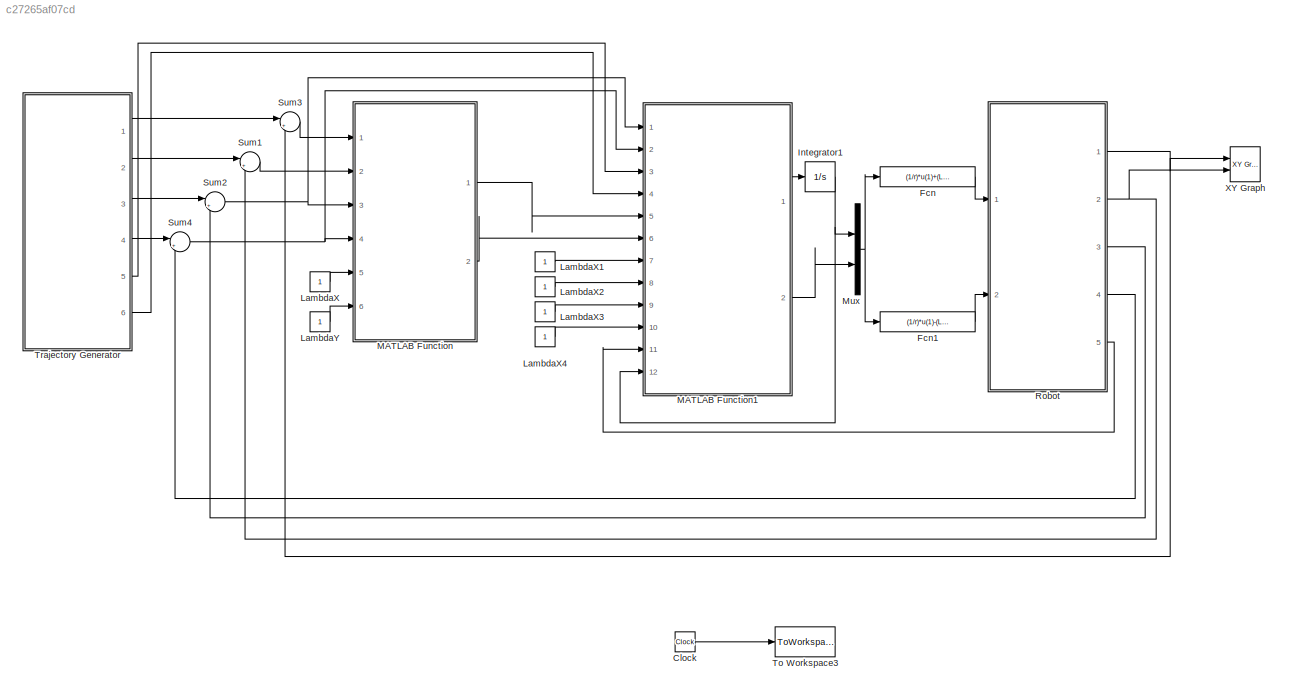
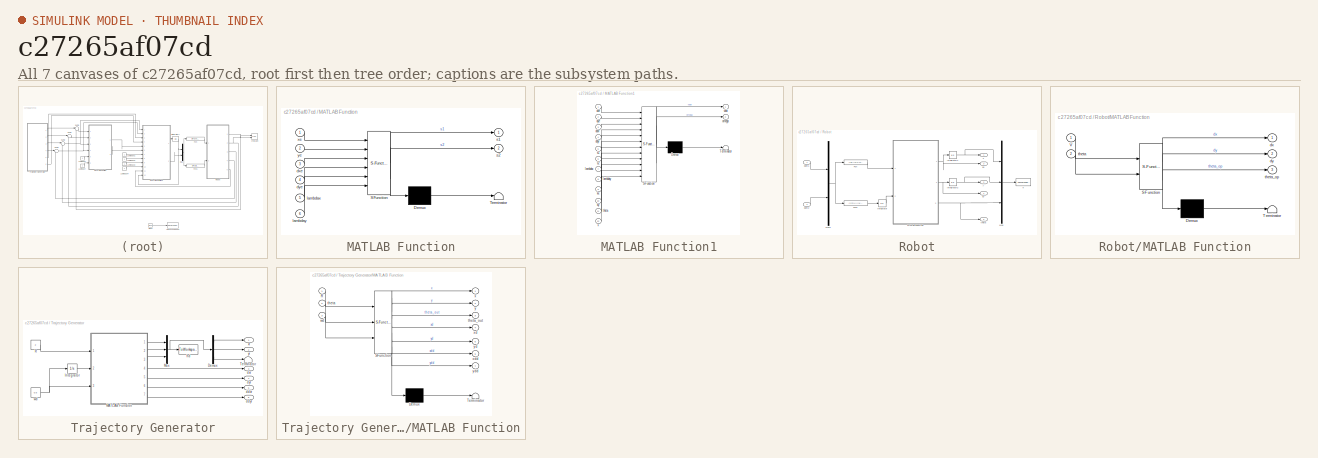
[diagram: thumbnail index - all 7 canvases of the model, root first then tree order]
MODEL slx_c27265af07cd
KIND model
CONFIG AbsTol = auto
CONFIG FixedStep = 0.0001
CONFIG MaxStep = auto
CONFIG MinStep = auto
CONFIG RelTol = 1e-3
CONFIG SampleTimeConstraint = Unconstrained
CONFIG Solver = ode4
CONFIG SolverMode = Auto
CONFIG SolverName = ode4
CONFIG StartTime = 0.0
CONFIG StopTime = 20
BLOCK [Constant]                                LambdaX1
BLOCK [Constant]                                LambdaX2
BLOCK [Constant]                              LambdaX3
BLOCK [Constant]                             LambdaX4
BLOCK [Clock] Clock
BLOCK [Fcn] Fcn
  Expr = (1/r)*u(1)+(L/r)*u(2)
BLOCK [Fcn] Fcn1
  Expr = (1/r)*u(1)-(L/r)*u(2)
BLOCK [Integrator] Integrator1
  InitialCondition = 1
  Ports = [1, 1]
BLOCK [Constant] LambdaX
BLOCK [Constant] LambdaY
BLOCK [SubSystem] MATLAB Function
  ErrorFcn = Stateflow.Translate.translate
  PermitHierarchicalResolution = ExplicitOnly
  Ports = [6, 2]
  RequestExecContextInheritance = off
  SFBlockType = MATLAB Function
  TreatAsAtomicUnit = on
  Variant = off
BLOCK [Demux] MATLAB Function/ Demux 
  Outputs = 1
  Ports = [1, 1]
BLOCK [S-Function] MATLAB Function/ SFunction 
  EnableBusSupport = on
  FunctionName = sf_sfun
  PortCounts = [6 3]
  Ports = [6, 3]
  SFunctionDeploymentMode = off
  Tag = Stateflow S-Function smc 3
BLOCK [Terminator] MATLAB Function/ Terminator 
BLOCK [Inport] MATLAB Function/dxe
  IconDisplay = Port number
  Port = 3
BLOCK [Inport] MATLAB Function/dye
  IconDisplay = Port number
  Port = 4
BLOCK [Inport] MATLAB Function/lambdax
  IconDisplay = Port number
  Port = 5
BLOCK [Inport] MATLAB Function/lambday
  IconDisplay = Port number
  Port = 6
BLOCK [Outport] MATLAB Function/s1
  IconDisplay = Port number
BLOCK [Outport] MATLAB Function/s2
  IconDisplay = Port number
  Port = 2
BLOCK [Inport] MATLAB Function/xe
  IconDisplay = Port number
BLOCK [Inport] MATLAB Function/ye
  IconDisplay = Port number
  Port = 2
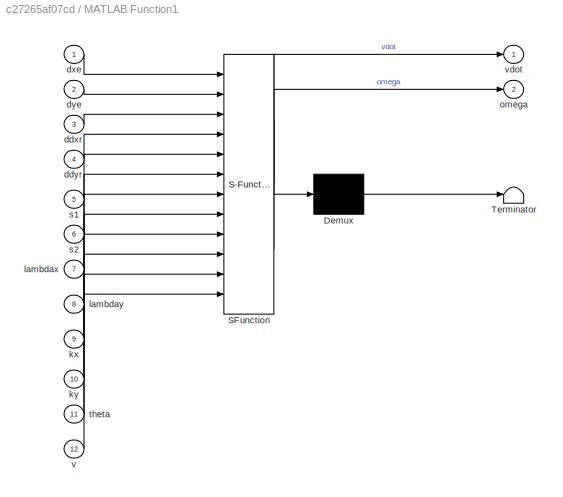
BLOCK [SubSystem] MATLAB Function1
  ErrorFcn = Stateflow.Translate.translate
  PermitHierarchicalResolution = ExplicitOnly
  Ports = [12, 2]
  RequestExecContextInheritance = off
  SFBlockType = MATLAB Function
  TreatAsAtomicUnit = on
  Variant = off
BLOCK [Demux] MATLAB Function1/ Demux 
  Outputs = 1
  Ports = [1, 1]
BLOCK [S-Function] MATLAB Function1/ SFunction 
  EnableBusSupport = on
  FunctionName = sf_sfun
  PortCounts = [12 3]
  Ports = [12, 3]
  SFunctionDeploymentMode = off
  Tag = Stateflow S-Function smc 4
BLOCK [Terminator] MATLAB Function1/ Terminator 
BLOCK [Inport] MATLAB Function1/ddxr
  IconDisplay = Port number
  Port = 3
BLOCK [Inport] MATLAB Function1/ddyr
  IconDisplay = Port number
  Port = 4
BLOCK [Inport] MATLAB Function1/dxe
  IconDisplay = Port number
BLOCK [Inport] MATLAB Function1/dye
  IconDisplay = Port number
  Port = 2
BLOCK [Inport] MATLAB Function1/kx
  IconDisplay = Port number
  Port = 9
BLOCK [Inport] MATLAB Function1/ky
  IconDisplay = Port number
  Port = 10
BLOCK [Inport] MATLAB Function1/lambdax
  IconDisplay = Port number
  Port = 7
BLOCK [Inport] MATLAB Function1/lambday
  IconDisplay = Port number
  Port = 8
BLOCK [Outport] MATLAB Function1/omega
  IconDisplay = Port number
  Port = 2
BLOCK [Inport] MATLAB Function1/s1
  IconDisplay = Port number
  Port = 5
BLOCK [Inport] MATLAB Function1/s2
  IconDisplay = Port number
  Port = 6
BLOCK [Inport] MATLAB Function1/theta
  IconDisplay = Port number
  Port = 11
BLOCK [Inport] MATLAB Function1/v
  IconDisplay = Port number
  Port = 12
BLOCK [Outport] MATLAB Function1/vdot
  IconDisplay = Port number
BLOCK [Mux] Mux
  DisplayOption = bar
  Inputs = 2
  Ports = [2, 1]
BLOCK [SubSystem] Robot
  Ports = [2, 5]
  RequestExecContextInheritance = off
  Variant = off
BLOCK [Fcn] Robot/Fcn
  Expr = (r/2)*(u(1)+u(2))
BLOCK [Fcn] Robot/Fcn1
  Expr = (r/(2*L))*(u(1)-u(2))
BLOCK [Integrator] Robot/Integrator
  Ports = [1, 1]
BLOCK [Integrator] Robot/Integrator1
  Ports = [1, 1]
BLOCK [Integrator] Robot/Integrator2
  Ports = [1, 1]
BLOCK [SubSystem] Robot/MATLAB Function
  ErrorFcn = Stateflow.Translate.translate
  PermitHierarchicalResolution = ExplicitOnly
  Ports = [2, 3]
  RequestExecContextInheritance = off
  SFBlockType = MATLAB Function
  TreatAsAtomicUnit = on
  Variant = off
BLOCK [Demux] Robot/MATLAB Function/ Demux 
  Outputs = 1
  Ports = [1, 1]
BLOCK [S-Function] Robot/MATLAB Function/ SFunction 
  EnableBusSupport = on
  FunctionName = sf_sfun
  PortCounts = [2 4]
  Ports = [2, 4]
  SFunctionDeploymentMode = off
  Tag = Stateflow S-Function smc 1
BLOCK [Terminator] Robot/MATLAB Function/ Terminator 
BLOCK [Inport] Robot/MATLAB Function/V
  IconDisplay = Port number
BLOCK [Outport] Robot/MATLAB Function/dx
  IconDisplay = Port number
BLOCK [Outport] Robot/MATLAB Function/dy
  IconDisplay = Port number
  Port = 2
BLOCK [Inport] Robot/MATLAB Function/theta
  IconDisplay = Port number
  Port = 2
BLOCK [Outport] Robot/MATLAB Function/theta_op
  IconDisplay = Port number
  Port = 3
BLOCK [Mux] Robot/Mux
  DisplayOption = bar
  Inputs = 3
  Ports = [3, 1]
BLOCK [Mux] Robot/Mux1
  DisplayOption = bar
  Inputs = 2
  Ports = [2, 1]
BLOCK [Inport] Robot/dphi1
  IconDisplay = Port number
BLOCK [Inport] Robot/dphi2
  IconDisplay = Port number
  Port = 2
BLOCK [Outport] Robot/dx
  IconDisplay = Port number
  Port = 3
BLOCK [Outport] Robot/dy
  IconDisplay = Port number
  Port = 4
BLOCK [ToWorkspace] Robot/h
  FixptAsFi = on
  MaxDataPoints = inf
  Ports = [1]
  SampleTime = -1
  Save2DSignal = 3-D array (concatenate along third dimension)
  VariableName = h
BLOCK [Outport] Robot/theta
  IconDisplay = Port number
  Port = 5
BLOCK [Outport] Robot/x
  IconDisplay = Port number
BLOCK [Outport] Robot/y
  IconDisplay = Port number
  Port = 2
BLOCK [Sum] Sum1
  IconShape = round
  InputSameDT = off
  Inputs = |+-
  OutDataTypeStr = Inherit: Inherit via internal rule
  Ports = [2, 1]
  SaturateOnIntegerOverflow = off
BLOCK [Sum] Sum2
  IconShape = round
  InputSameDT = off
  Inputs = |+-
  OutDataTypeStr = Inherit: Inherit via internal rule
  Ports = [2, 1]
  SaturateOnIntegerOverflow = off
BLOCK [Sum] Sum3
  IconShape = round
  InputSameDT = off
  Inputs = |+-
  OutDataTypeStr = Inherit: Inherit via internal rule
  Ports = [2, 1]
  SaturateOnIntegerOverflow = off
BLOCK [Sum] Sum4
  IconShape = round
  InputSameDT = off
  Inputs = |+-
  OutDataTypeStr = Inherit: Inherit via internal rule
  Ports = [2, 1]
  SaturateOnIntegerOverflow = off
BLOCK [ToWorkspace] To Workspace3
  FixptAsFi = on
  MaxDataPoints = inf
  Ports = [1]
  SampleTime = -1
  Save2DSignal = 3-D array (concatenate along third dimension)
  VariableName = t
BLOCK [SubSystem] Trajectory Generator
  Ports = [0, 6]
  RequestExecContextInheritance = off
  Variant = off
BLOCK [Demux] Trajectory Generator/Demux
  DisplayOption = bar
  Outputs = 3
  Ports = [1, 3]
BLOCK [Integrator] Trajectory Generator/Integrator
  Ports = [1, 1]
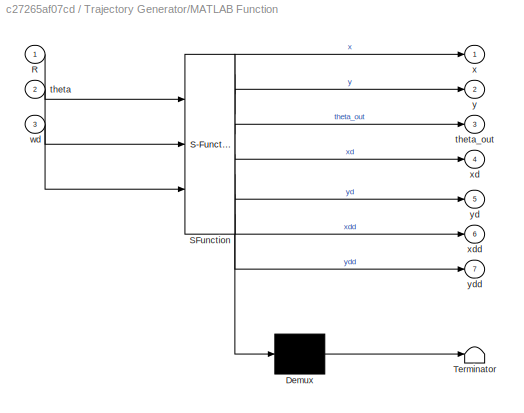
BLOCK [SubSystem] Trajectory Generator/MATLAB Function
  ErrorFcn = Stateflow.Translate.translate
  PermitHierarchicalResolution = ExplicitOnly
  Ports = [3, 7]
  RequestExecContextInheritance = off
  SFBlockType = MATLAB Function
  TreatAsAtomicUnit = on
  Variant = off
BLOCK [Demux] Trajectory Generator/MATLAB Function/ Demux 
  Outputs = 1
  Ports = [1, 1]
BLOCK [S-Function] Trajectory Generator/MATLAB Function/ SFunction 
  EnableBusSupport = on
  FunctionName = sf_sfun
  PortCounts = [3 8]
  Ports = [3, 8]
  SFunctionDeploymentMode = off
  Tag = Stateflow S-Function smc 2
BLOCK [Terminator] Trajectory Generator/MATLAB Function/ Terminator 
BLOCK [Inport] Trajectory Generator/MATLAB Function/R
  IconDisplay = Port number
BLOCK [Inport] Trajectory Generator/MATLAB Function/theta
  IconDisplay = Port number
  Port = 2
BLOCK [Outport] Trajectory Generator/MATLAB Function/theta_out
  IconDisplay = Port number
  Port = 3
BLOCK [Inport] Trajectory Generator/MATLAB Function/wd
  IconDisplay = Port number
  Port = 3
BLOCK [Outport] Trajectory Generator/MATLAB Function/x
  IconDisplay = Port number
BLOCK [Outport] Trajectory Generator/MATLAB Function/xd
  IconDisplay = Port number
  Port = 4
BLOCK [Outport] Trajectory Generator/MATLAB Function/xdd
  IconDisplay = Port number
  Port = 6
BLOCK [Outport] Trajectory Generator/MATLAB Function/y
  IconDisplay = Port number
  Port = 2
BLOCK [Outport] Trajectory Generator/MATLAB Function/yd
  IconDisplay = Port number
  Port = 5
BLOCK [Outport] Trajectory Generator/MATLAB Function/ydd
  IconDisplay = Port number
  Port = 7
BLOCK [Mux] Trajectory Generator/Mux
  DisplayOption = bar
  Inputs = 3
  Ports = [3, 1]
BLOCK [Constant] Trajectory Generator/R
  Value = 2
BLOCK [Terminator] Trajectory Generator/Terminator
BLOCK [Outport] Trajectory Generator/ddxr
  IconDisplay = Port number
  Port = 5
BLOCK [Outport] Trajectory Generator/ddyr
  IconDisplay = Port number
  Port = 6
BLOCK [Outport] Trajectory Generator/dxr
  IconDisplay = Port number
  Port = 3
BLOCK [Outport] Trajectory Generator/dyr
  IconDisplay = Port number
  Port = 4
BLOCK [ToWorkspace] Trajectory Generator/hd
  FixptAsFi = on
  MaxDataPoints = inf
  Ports = [1]
  SampleTime = -1
  Save2DSignal = 3-D array (concatenate along third dimension)
  VariableName = hd
BLOCK [Constant] Trajectory Generator/wd
  Value = 0.5
BLOCK [Outport] Trajectory Generator/xr
  IconDisplay = Port number
BLOCK [Outport] Trajectory Generator/yr
  IconDisplay = Port number
  Port = 2
BLOCK [Reference] XY Graph  REF=simulink/Sinks/XY Graph
  Ports = [2]
  SourceBlock = simulink/Sinks/XY Graph
  SourceType = XY scope.
LINE                                LambdaX1:1 -> MATLAB Function1:7
LINE                                LambdaX2:1 -> MATLAB Function1:8
LINE                              LambdaX3:1 -> MATLAB Function1:9
LINE                             LambdaX4:1 -> MATLAB Function1:10
LINE Clock:1 -> To Workspace3:1
LINE Fcn1:1 -> Robot:2
LINE Fcn:1 -> Robot:1
NET Integrator1:1 -> MATLAB Function1:12, Mux:1
LINE LambdaX:1 -> MATLAB Function:5
LINE LambdaY:1 -> MATLAB Function:6
LINE MATLAB Function1:1 -> Integrator1:1
LINE MATLAB Function1:2 -> Mux:2
LINE MATLAB Function:1 -> MATLAB Function1:5
LINE MATLAB Function:2 -> MATLAB Function1:6
NET Mux:1 -> Fcn1:1, Fcn:1
LINE Robot/Fcn1:1 -> Robot/Integrator:1
LINE Robot/Fcn:1 -> Robot/MATLAB Function:1
NET Robot/Integrator1:1 -> Robot/Mux:1, Robot/x:1
NET Robot/Integrator2:1 -> Robot/Mux:2, Robot/y:1
LINE Robot/Integrator:1 -> Robot/MATLAB Function:2
NET Robot/MATLAB Function:1 -> Robot/Integrator1:1, Robot/dx:1
NET Robot/MATLAB Function:2 -> Robot/Integrator2:1, Robot/dy:1
NET Robot/MATLAB Function:3 -> Robot/Mux:3, Robot/theta:1
NET Robot/Mux1:1 -> Robot/Fcn1:1, Robot/Fcn:1
LINE Robot/Mux:1 -> Robot/h:1
LINE Robot/dphi1:1 -> Robot/Mux1:1
LINE Robot/dphi2:1 -> Robot/Mux1:2
NET Robot:1 -> Sum3:2, XY Graph:1
NET Robot:2 -> Sum1:2, XY Graph:2
LINE Robot:3 -> Sum2:2
LINE Robot:4 -> Sum4:2
LINE Robot:5 -> MATLAB Function1:11
LINE Sum1:1 -> MATLAB Function:2
NET Sum2:1 -> MATLAB Function1:1, MATLAB Function:3
LINE Sum3:1 -> MATLAB Function:1
NET Sum4:1 -> MATLAB Function1:2, MATLAB Function:4
LINE Trajectory Generator/Demux:1 -> Trajectory Generator/xr:1
LINE Trajectory Generator/Demux:2 -> Trajectory Generator/yr:1
LINE Trajectory Generator/Demux:3 -> Trajectory Generator/Terminator:1
LINE Trajectory Generator/Integrator:1 -> Trajectory Generator/MATLAB Function:2
LINE Trajectory Generator/MATLAB Function:1 -> Trajectory Generator/Mux:1
LINE Trajectory Generator/MATLAB Function:2 -> Trajectory Generator/Mux:2
LINE Trajectory Generator/MATLAB Function:3 -> Trajectory Generator/Mux:3
LINE Trajectory Generator/MATLAB Function:4 -> Trajectory Generator/dxr:1
LINE Trajectory Generator/MATLAB Function:5 -> Trajectory Generator/dyr:1
LINE Trajectory Generator/MATLAB Function:6 -> Trajectory Generator/ddxr:1
LINE Trajectory Generator/MATLAB Function:7 -> Trajectory Generator/ddyr:1
NET Trajectory Generator/Mux:1 -> Trajectory Generator/Demux:1, Trajectory Generator/hd:1
LINE Trajectory Generator/R:1 -> Trajectory Generator/MATLAB Function:1
NET Trajectory Generator/wd:1 -> Trajectory Generator/Integrator:1, Trajectory Generator/MATLAB Function:3
LINE Trajectory Generator:1 -> Sum3:1
LINE Trajectory Generator:2 -> Sum1:1
LINE Trajectory Generator:3 -> Sum2:1
LINE Trajectory Generator:4 -> Sum4:1
LINE Trajectory Generator:5 -> MATLAB Function1:3
LINE Trajectory Generator:6 -> MATLAB Function1:4
note: NET lines group one-source signal fan-out (src -> all destinations, sorted); 1:1 wires keep LINE
CHART Robot/MATLAB Function states=1 transitions=1
  STATE_LABEL 'eML_blk_kernel()'
  STATE_LABEL 'SCRIPT:\nfunction [dx,dy,theta_op] = fcn(V,theta)\n%#codegen\ndx=V*cos(theta);\ndy=V*sin(theta);\ntheta_op=theta;\nend'
CHART Trajectory Generator/MATLAB Function states=1 transitions=1
  STATE_LABEL 'eML_blk_kernel()'
  STATE_LABEL 'SCRIPT:\nfunction [x,y,theta_out,xd,yd,xdd,ydd] = fcn(R,theta,wd)\n%#codegen\nx=R*cos(theta);\ny=R*sin(theta);\nxd=-R*wd*sin(theta);\nyd=R*wd*cos(theta);\nxdd=-R*(wd^2)*cos(theta);\nydd=-R*(wd^2)*sin(theta);\ntheta_out=theta+pi/2;\nend'
CHART MATLAB Function states=1 transitions=1
  STATE_LABEL 'eML_blk_kernel()'
  STATE_LABEL 'SCRIPT:\nfunction [s1,s2] = fcn(xe,ye,dxe,dye,lambdax,lambday)\n%#codegen\n\ns1=dxe+lambdax*xe;\ns2=dye+lambday*ye;\n\n\nend'
CHART MATLAB Function1 states=1 transitions=1
  STATE_LABEL 'eML_blk_kernel()'
  STATE_LABEL 'SCRIPT:\nfunction [vdot,omega] = fcn(dxe,dye,ddxr,ddyr,s1,s2,lambdax,lambday,kx,ky,theta,v)\n%#codegen\n\n\nalpha=[ddxr+lambdax*dxe;ddyr+lambday*dye];\nbeta=[-cos(theta)  v*sin(theta);\n      -sin(theta) -v*cos(theta)];\n  \nu=inv(beta)*([-kx*sign(s1);-ky*sign(s2)]-alpha);\n\nvdot=u(1);\nomega=u(2);\nend'
